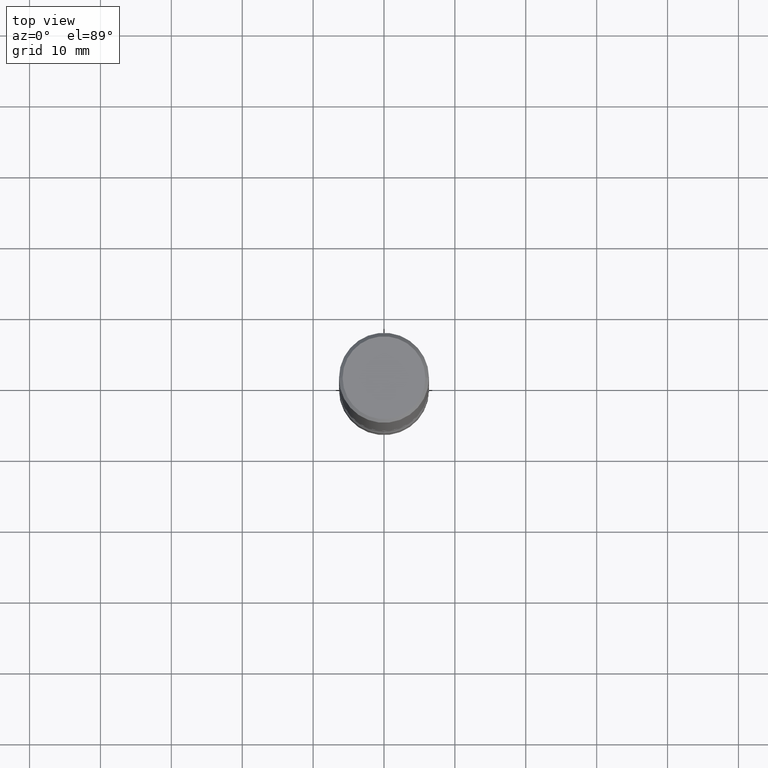
[diagram: clean part render]
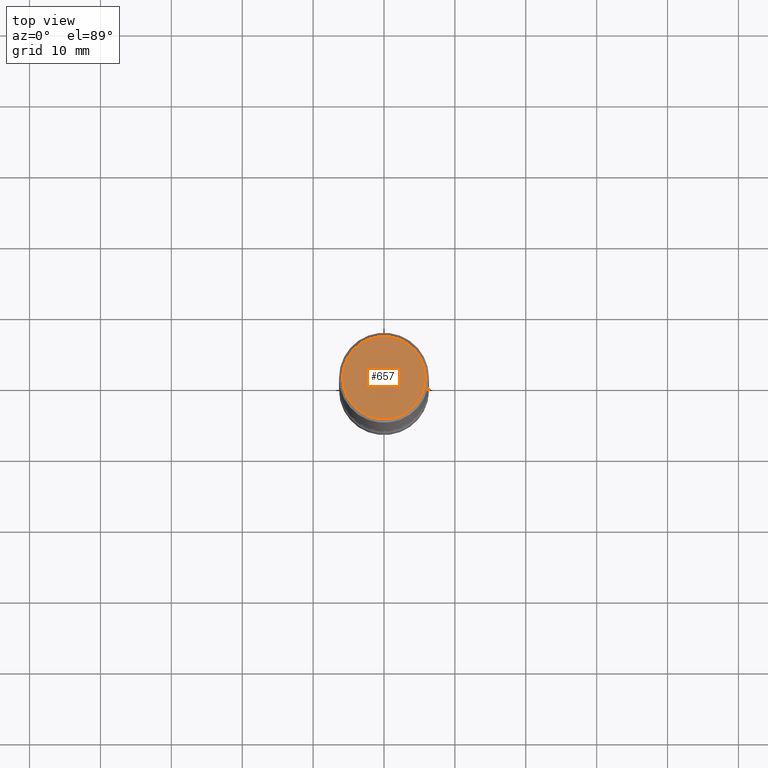
[diagram: same view with one face highlighted and labeled with its STEP entity id]
A machine part, top view. The second image highlights one B-rep face of the part: STEP entity #657.
In plain terms, the highlighted planar face has unit normal (0, -0, -1).
Its self-contained STEP definition (entity closure, byte-faithful):
#66 = DIRECTION ( 'NONE',  ( -1.000000000000000000, 6.982962677686265922E-15, -4.876176775795935793E-29 ) ) ;
#115 = DIRECTION ( 'NONE',  ( -2.445468806185136597E-29, 3.491481338843145583E-15, 1.000000000000000000 ) ) ;
#196 = CARTESIAN_POINT ( 'NONE',  ( 1.606081415867839095E-15, 0.2299999999999997047, -8.009064516888722925E-16 ) ) ;
#199 = VERTEX_POINT ( 'NONE', #317 ) ;
#213 = EDGE_LOOP ( 'NONE', ( #416, #666 ) ) ;
#297 = CARTESIAN_POINT ( 'NONE',  ( -1.043851414335219820E-46, 1.490343170380447200E-32, 4.268512490100411279E-18 ) ) ;
#309 = FACE_OUTER_BOUND ( 'NONE', #213, .T. ) ;
#317 = CARTESIAN_POINT ( 'NONE',  ( -0.2299999999999997047, 1.640996229256270547E-15, 4.268512490089056766E-18 ) ) ;
#329 = CIRCLE ( 'NONE', #590, 0.2299999999999997047 ) ;
#385 = EDGE_CURVE ( 'NONE', #199, #724, #679, .T. ) ;
#416 = ORIENTED_EDGE ( 'NONE', *, *, #385, .T. ) ;
#424 = AXIS2_PLACEMENT_3D ( 'NONE', #595, #660, #540 ) ;
#521 = EDGE_CURVE ( 'NONE', #724, #199, #329, .T. ) ;
#540 = DIRECTION ( 'NONE',  ( 1.000000000000000000, -6.982962677686266711E-15, 4.876225828469315047E-29 ) ) ;
#590 = AXIS2_PLACEMENT_3D ( 'NONE', #297, #115, #621 ) ;
#595 = CARTESIAN_POINT ( 'NONE',  ( -1.043851414335219820E-46, 1.490343170380447200E-32, 4.268512490100411279E-18 ) ) ;
#621 = DIRECTION ( 'NONE',  ( 1.000000000000000000, -6.982962677686266711E-15, 4.876225828469315047E-29 ) ) ;
#627 = CARTESIAN_POINT ( 'NONE',  ( 0.2299999999999997047, -1.681434332853597236E-15, 4.268512490111905999E-18 ) ) ;
#657 = ADVANCED_FACE ( 'NONE', ( #309 ), #683, .F. ) ;
#660 = DIRECTION ( 'NONE',  ( -2.445468806185136597E-29, 3.491481338843145583E-15, 1.000000000000000000 ) ) ;
#666 = ORIENTED_EDGE ( 'NONE', *, *, #521, .T. ) ;
#679 = CIRCLE ( 'NONE', #424, 0.2299999999999997047 ) ;
#683 = PLANE ( 'NONE',  #801 ) ;
#724 = VERTEX_POINT ( 'NONE', #627 ) ;
#750 = DIRECTION ( 'NONE',  ( 2.438088387897960049E-29, -3.491481338843145188E-15, -1.000000000000000000 ) ) ;
#801 = AXIS2_PLACEMENT_3D ( 'NONE', #196, #750, #66 ) ;